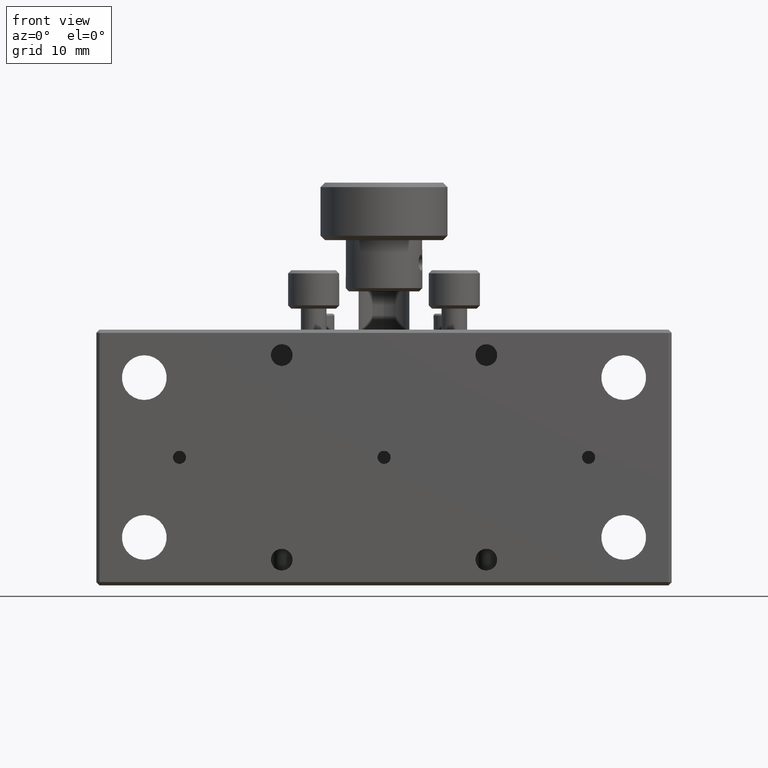
[diagram: clean part render]
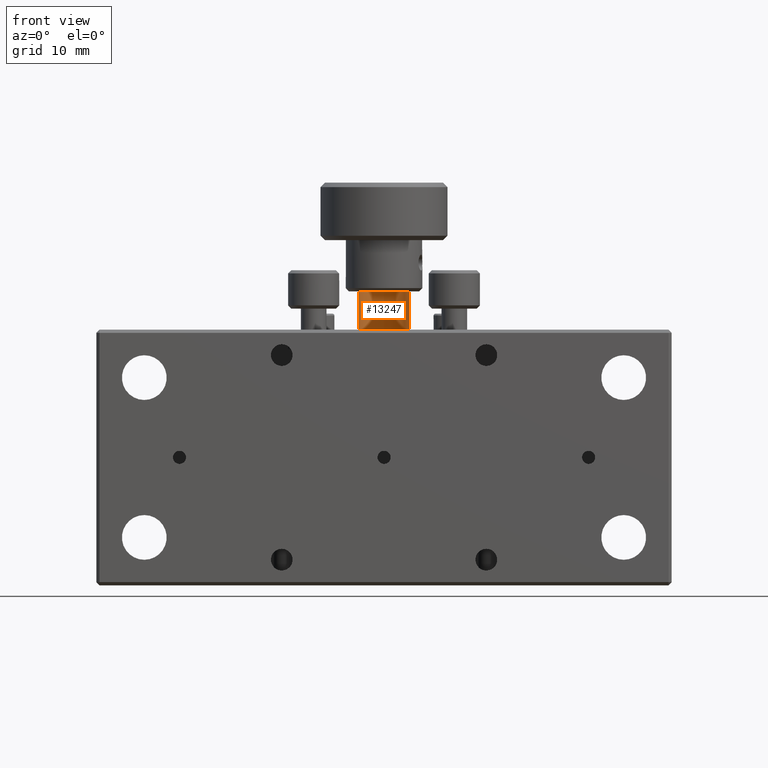
[diagram: same view with one face highlighted and labeled with its STEP entity id]
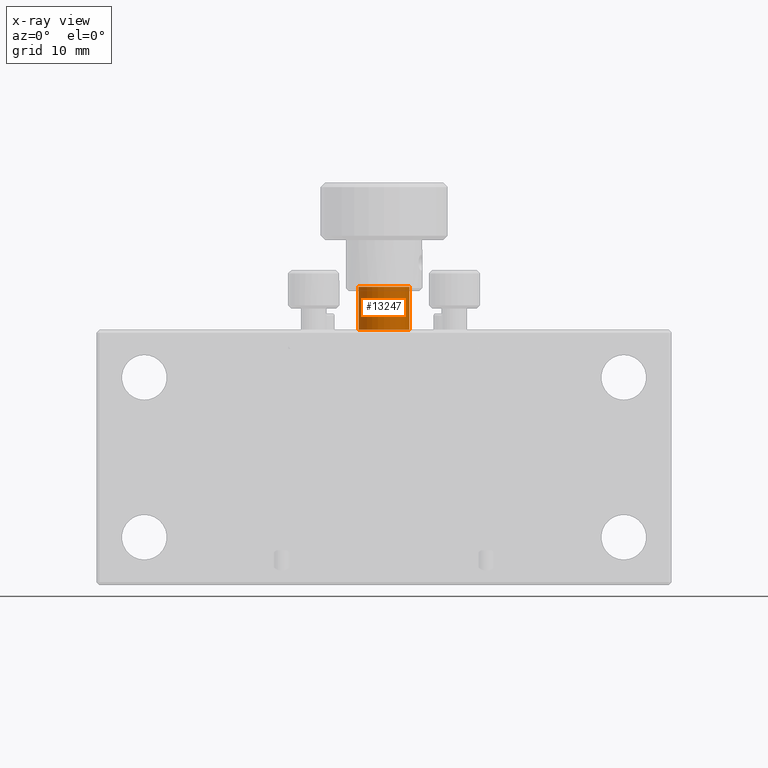
[diagram: x-ray of the same camera — body ghosted, the highlighted face saturated]
A machine part, front view. The second image highlights one B-rep face of the part: STEP entity #13247.
The next image is the same camera in x-ray: the body ghosted, the highlighted face saturated — about 0% of this face is hidden behind the body in this view.
In plain terms, the highlighted cylindrical surface (bore or boss wall) has radius 4 mm, axis along (0, -0, -1).
Its self-contained STEP definition (entity closure, byte-faithful):
#100 = DIRECTION ( 'NONE',  ( 0.000000000000000000, 1.000000000000000000, -4.336808689942017736E-15 ) ) ;
#1398 = EDGE_CURVE ( 'NONE', #14914, #14914, #18723, .T. ) ;
#1529 = ORIENTED_EDGE ( 'NONE', *, *, #1827, .F. ) ;
#1827 = EDGE_CURVE ( 'NONE', #15337, #15337, #19095, .T. ) ;
#2447 = DIRECTION ( 'NONE',  ( 1.058181320345852328E-16, -4.286345855076395539E-15, -1.000000000000000000 ) ) ;
#2553 = CARTESIAN_POINT ( 'NONE',  ( 20.61330177514791728, 25.35204733727880466, 26.69999999999994245 ) ) ;
#4949 = DIRECTION ( 'NONE',  ( -1.058181320345852328E-16, 4.286345855076395539E-15, 1.000000000000000000 ) ) ;
#6854 = ORIENTED_EDGE ( 'NONE', *, *, #1398, .F. ) ;
#6877 = FACE_OUTER_BOUND ( 'NONE', #12537, .T. ) ;
#10173 = CARTESIAN_POINT ( 'NONE',  ( 20.61330177514791728, 29.35204733727877624, 19.99999999999993250 ) ) ;
#10282 = AXIS2_PLACEMENT_3D ( 'NONE', #20077, #16887, #13481 ) ;
#10291 = CYLINDRICAL_SURFACE ( 'NONE', #10282, 4.000000000000000000 ) ;
#11024 = AXIS2_PLACEMENT_3D ( 'NONE', #18814, #4949, #100 ) ;
#12537 = EDGE_LOOP ( 'NONE', ( #6854 ) ) ;
#12970 = EDGE_LOOP ( 'NONE', ( #1529 ) ) ;
#13247 = ADVANCED_FACE ( 'NONE', ( #16990, #6877 ), #10291, .F. ) ;
#13481 = DIRECTION ( 'NONE',  ( 0.000000000000000000, 1.000000000000000000, -4.336808689942017736E-15 ) ) ;
#14914 = VERTEX_POINT ( 'NONE', #15226 ) ;
#15226 = CARTESIAN_POINT ( 'NONE',  ( 20.61330177514791728, 29.35204733727880466, 26.69999999999992468 ) ) ;
#15337 = VERTEX_POINT ( 'NONE', #10173 ) ;
#16114 = DIRECTION ( 'NONE',  ( 0.000000000000000000, 1.000000000000000000, -4.336808689942017736E-15 ) ) ;
#16887 = DIRECTION ( 'NONE',  ( 1.058181320345852328E-16, -4.286345855076395539E-15, -1.000000000000000000 ) ) ;
#16990 = FACE_OUTER_BOUND ( 'NONE', #12970, .T. ) ;
#18723 = CIRCLE ( 'NONE', #20466, 4.000000000000000000 ) ;
#18814 = CARTESIAN_POINT ( 'NONE',  ( 20.61330177514791728, 25.35204733727877624, 19.99999999999994671 ) ) ;
#19095 = CIRCLE ( 'NONE', #11024, 4.000000000000000000 ) ;
#20077 = CARTESIAN_POINT ( 'NONE',  ( 20.61330177514791728, 25.35204733727874427, 12.99999999999994493 ) ) ;
#20466 = AXIS2_PLACEMENT_3D ( 'NONE', #2553, #2447, #16114 ) ;